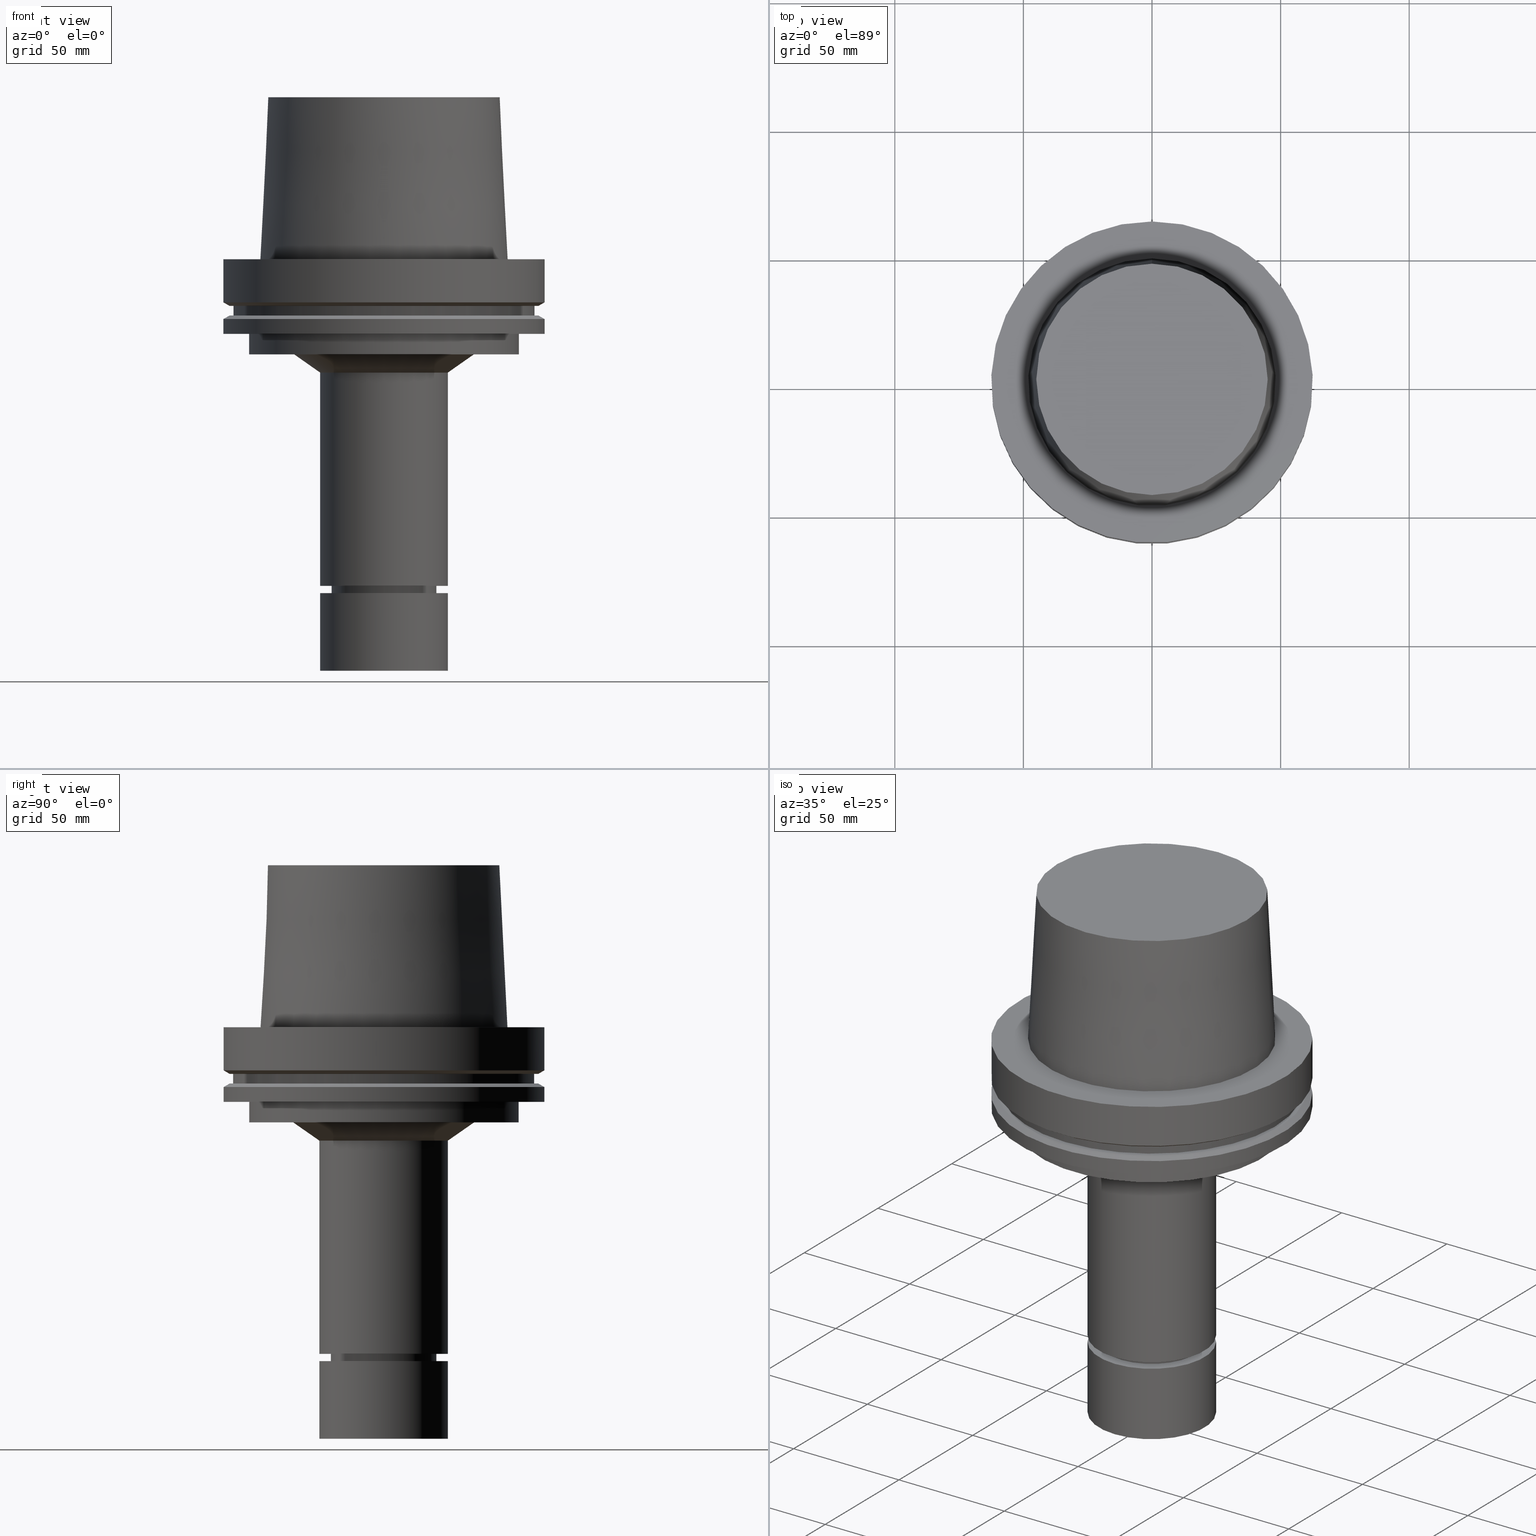
[diagram: canonical four-view strip — front | top / right | iso, engineering-drawing reading convention]
A machine part, canonical four-view strip (front | top / right | iso — engineering-drawing reading convention). The complete STEP part file that produces these views, byte-faithful:
ISO-10303-21;
HEADER;
FILE_DESCRIPTION((''),'1');
FILE_NAME('U:/Translate/02_3D_Field-HP\X2\FF71FF6FFF8CFF9F5916\X0\2013/02_Step_Field-HP\X2\FF71FF6FFF8CFF9F5916\X0\2013/HSK-A125-MEGAER32-160NL.stp','2016-06-22T04:50:22',(''),(''),'Spatial Interop R21 SP3','Kubotek KeyCreator 2011 V10.0.2 (22737)',' ');
FILE_SCHEMA(('automotive_design'));
ENDSEC;
DATA;
#1=MECHANICAL_DESIGN_GEOMETRIC_PRESENTATION_REPRESENTATION(' ',(#14,#15,#16,#17,#18,#19,#20,#21,#22,#23,#24,#25,#26,#27,#28,#29,#30,#31,#32,#33,#34,#35,#36,#37,#38,#39,#40,#41,#42,#43,#44,#45,#46,#47,#48,#49,#50,#51,#52,#53,#54,#55,#56,#57,#58,#59,#60,#61),#10);
#2=PRODUCT_DEFINITION_CONTEXT('',#62,'design');
#3=APPLICATION_PROTOCOL_DEFINITION('INTERNATIONAL STANDARD','automotive_design',1994,#62);
#4=PRODUCT_CATEGORY_RELATIONSHIP('NONE','NONE',#63,#64);
#5=SHAPE_DEFINITION_REPRESENTATION(#65,#66);
#6=PRODUCT_DEFINITION_CONTEXT('',#67,'design');
#7=APPLICATION_PROTOCOL_DEFINITION('INTERNATIONAL STANDARD','automotive_design',1994,#67);
#8=PRODUCT_CATEGORY_RELATIONSHIP('NONE','NONE',#68,#69);
#9=SHAPE_DEFINITION_REPRESENTATION(#70,#71);
#10= (GEOMETRIC_REPRESENTATION_CONTEXT(3)GLOBAL_UNCERTAINTY_ASSIGNED_CONTEXT((#74))GLOBAL_UNIT_ASSIGNED_CONTEXT((#76,#77,#78))REPRESENTATION_CONTEXT('NONE','WORKSPACE'));
#14=STYLED_ITEM('',(#80,#81),#82);
#15=STYLED_ITEM('',(#83,#84),#85);
#16=STYLED_ITEM('',(#86,#87),#88);
#17=STYLED_ITEM('',(#89),#90);
#18=STYLED_ITEM('',(#91),#92);
#19=STYLED_ITEM('',(#93,#94),#95);
#20=STYLED_ITEM('',(#96,#97),#98);
#21=STYLED_ITEM('',(#99,#100),#101);
#22=STYLED_ITEM('',(#102),#103);
#23=STYLED_ITEM('',(#104),#105);
#24=STYLED_ITEM('',(#106),#107);
#25=STYLED_ITEM('',(#108),#109);
#26=STYLED_ITEM('',(#110,#111),#112);
#27=STYLED_ITEM('',(#113),#114);
#28=STYLED_ITEM('',(#115),#116);
#29=STYLED_ITEM('',(#117,#118),#119);
#30=STYLED_ITEM('',(#120,#121),#122);
#31=STYLED_ITEM('',(#123),#124);
#32=STYLED_ITEM('',(#125,#126),#127);
#33=STYLED_ITEM('',(#128,#129),#130);
#34=STYLED_ITEM('',(#131,#132),#133);
#35=STYLED_ITEM('',(#134),#135);
#36=STYLED_ITEM('',(#136,#137),#138);
#37=STYLED_ITEM('',(#139,#140),#141);
#38=STYLED_ITEM('',(#142,#143),#144);
#39=STYLED_ITEM('',(#145),#146);
#40=STYLED_ITEM('',(#147),#148);
#41=STYLED_ITEM('',(#149),#150);
#42=STYLED_ITEM('',(#151,#152),#153);
#43=STYLED_ITEM('',(#154,#155),#156);
#44=STYLED_ITEM('',(#157,#158),#159);
#45=STYLED_ITEM('',(#160),#161);
#46=STYLED_ITEM('',(#162),#163);
#47=STYLED_ITEM('',(#164,#165),#166);
#48=STYLED_ITEM('',(#167),#168);
#49=STYLED_ITEM('',(#169),#170);
#50=STYLED_ITEM('',(#171,#172),#173);
#51=STYLED_ITEM('',(#174,#175),#176);
#52=STYLED_ITEM('',(#177,#178),#179);
#53=STYLED_ITEM('',(#180,#181),#182);
#54=STYLED_ITEM('',(#183,#184),#185);
#55=STYLED_ITEM('',(#186,#187),#188);
#56=STYLED_ITEM('',(#189),#190);
#57=STYLED_ITEM('',(#191),#192);
#58=STYLED_ITEM('',(#193,#194),#195);
#59=STYLED_ITEM('',(#196),#197);
#60=STYLED_ITEM('',(#198),#199);
#61=STYLED_ITEM('',(#200),#201);
#62=APPLICATION_CONTEXT(' ');
#63=PRODUCT_CATEGORY('part','NONE');
#64=PRODUCT_RELATED_PRODUCT_CATEGORY('detail',' ',(#202));
#65=PRODUCT_DEFINITION_SHAPE('NONE','NONE',#203);
#66=ADVANCED_BREP_SHAPE_REPRESENTATION('Unnamed[1]',(#119,#204),#10);
#67=APPLICATION_CONTEXT(' ');
#68=PRODUCT_CATEGORY('part','NONE');
#69=PRODUCT_RELATED_PRODUCT_CATEGORY('detail',' ',(#205));
#70=PRODUCT_DEFINITION_SHAPE('NONE','NONE',#206);
#71=ADVANCED_BREP_SHAPE_REPRESENTATION('Unnamed[1]',(#85,#207),#10);
#74=UNCERTAINTY_MEASURE_WITH_UNIT(LENGTH_MEASURE(1.0E-006),#76,'','');
#76= (CONVERSION_BASED_UNIT('MILLIMETRE',#210)LENGTH_UNIT()NAMED_UNIT(#213));
#77= (NAMED_UNIT(#215)PLANE_ANGLE_UNIT()SI_UNIT($,.RADIAN.));
#78= (NAMED_UNIT(#215)SOLID_ANGLE_UNIT()SI_UNIT($,.STERADIAN.));
#80=PRESENTATION_STYLE_ASSIGNMENT((#221));
#81=PRESENTATION_STYLE_ASSIGNMENT((#222));
#82=ADVANCED_FACE('Unnamed[1]',(#223),#224,.T.);
#83=PRESENTATION_STYLE_ASSIGNMENT((#225));
#84=PRESENTATION_STYLE_ASSIGNMENT((#226));
#85=MANIFOLD_SOLID_BREP('Unnamed[1]',#227);
#86=PRESENTATION_STYLE_ASSIGNMENT((#228));
#87=PRESENTATION_STYLE_ASSIGNMENT((#229));
#88=ADVANCED_FACE('Unnamed[1]',(#230,#231),#232,.T.);
#89=PRESENTATION_STYLE_ASSIGNMENT((#233));
#90=EDGE_CURVE('Unnamed[1]',#234,#234,#235,.T.);
#91=PRESENTATION_STYLE_ASSIGNMENT((#236));
#92=EDGE_CURVE('Unnamed[1]',#237,#237,#238,.T.);
#93=PRESENTATION_STYLE_ASSIGNMENT((#239));
#94=PRESENTATION_STYLE_ASSIGNMENT((#240));
#95=ADVANCED_FACE('Unnamed[1]',(#241,#242),#243,.T.);
#96=PRESENTATION_STYLE_ASSIGNMENT((#244));
#97=PRESENTATION_STYLE_ASSIGNMENT((#245));
#98=ADVANCED_FACE('Unnamed[1]',(#246,#247),#248,.T.);
#99=PRESENTATION_STYLE_ASSIGNMENT((#249));
#100=PRESENTATION_STYLE_ASSIGNMENT((#250));
#101=ADVANCED_FACE('Unnamed[1]',(#251,#252),#253,.T.);
#102=PRESENTATION_STYLE_ASSIGNMENT((#254));
#103=EDGE_CURVE('Unnamed[1]',#255,#255,#256,.T.);
#104=PRESENTATION_STYLE_ASSIGNMENT((#257));
#105=EDGE_CURVE('Unnamed[1]',#258,#258,#259,.T.);
#106=PRESENTATION_STYLE_ASSIGNMENT((#260));
#107=EDGE_CURVE('Unnamed[1]',#261,#261,#262,.T.);
#108=PRESENTATION_STYLE_ASSIGNMENT((#263));
#109=EDGE_CURVE('Unnamed[1]',#264,#264,#265,.T.);
#110=PRESENTATION_STYLE_ASSIGNMENT((#266));
#111=PRESENTATION_STYLE_ASSIGNMENT((#267));
#112=ADVANCED_FACE('Unnamed[1]',(#268,#269),#270,.T.);
#113=PRESENTATION_STYLE_ASSIGNMENT((#271));
#114=EDGE_CURVE('Unnamed[1]',#272,#272,#273,.T.);
#115=PRESENTATION_STYLE_ASSIGNMENT((#274));
#116=EDGE_CURVE('Unnamed[1]',#275,#275,#276,.T.);
#117=PRESENTATION_STYLE_ASSIGNMENT((#277));
#118=PRESENTATION_STYLE_ASSIGNMENT((#278));
#119=MANIFOLD_SOLID_BREP('Unnamed[1]',#279);
#120=PRESENTATION_STYLE_ASSIGNMENT((#280));
#121=PRESENTATION_STYLE_ASSIGNMENT((#281));
#122=ADVANCED_FACE('Unnamed[1]',(#282,#283),#284,.T.);
#123=PRESENTATION_STYLE_ASSIGNMENT((#285));
#124=EDGE_CURVE('Unnamed[1]',#286,#286,#287,.T.);
#125=PRESENTATION_STYLE_ASSIGNMENT((#288));
#126=PRESENTATION_STYLE_ASSIGNMENT((#289));
#127=ADVANCED_FACE('Unnamed[1]',(#290,#291),#292,.T.);
#128=PRESENTATION_STYLE_ASSIGNMENT((#293));
#129=PRESENTATION_STYLE_ASSIGNMENT((#294));
#130=ADVANCED_FACE('Unnamed[1]',(#295,#296),#297,.T.);
#131=PRESENTATION_STYLE_ASSIGNMENT((#298));
#132=PRESENTATION_STYLE_ASSIGNMENT((#299));
#133=ADVANCED_FACE('Unnamed[1]',(#300,#301),#302,.T.);
#134=PRESENTATION_STYLE_ASSIGNMENT((#303));
#135=EDGE_CURVE('Unnamed[1]',#304,#304,#305,.T.);
#136=PRESENTATION_STYLE_ASSIGNMENT((#306));
#137=PRESENTATION_STYLE_ASSIGNMENT((#307));
#138=ADVANCED_FACE('Unnamed[1]',(#308,#309),#310,.T.);
#139=PRESENTATION_STYLE_ASSIGNMENT((#311));
#140=PRESENTATION_STYLE_ASSIGNMENT((#312));
#141=ADVANCED_FACE('Unnamed[1]',(#313),#314,.T.);
#142=PRESENTATION_STYLE_ASSIGNMENT((#315));
#143=PRESENTATION_STYLE_ASSIGNMENT((#316));
#144=ADVANCED_FACE('Unnamed[1]',(#317),#318,.T.);
#145=PRESENTATION_STYLE_ASSIGNMENT((#319));
#146=EDGE_CURVE('Unnamed[1]',#320,#320,#321,.T.);
#147=PRESENTATION_STYLE_ASSIGNMENT((#322));
#148=EDGE_CURVE('Unnamed[1]',#323,#323,#324,.T.);
#149=PRESENTATION_STYLE_ASSIGNMENT((#325));
#150=EDGE_CURVE('Unnamed[1]',#326,#326,#327,.T.);
#151=PRESENTATION_STYLE_ASSIGNMENT((#328));
#152=PRESENTATION_STYLE_ASSIGNMENT((#329));
#153=ADVANCED_FACE('Unnamed[1]',(#330,#331),#332,.T.);
#154=PRESENTATION_STYLE_ASSIGNMENT((#333));
#155=PRESENTATION_STYLE_ASSIGNMENT((#334));
#156=ADVANCED_FACE('Unnamed[1]',(#335,#336),#337,.T.);
#157=PRESENTATION_STYLE_ASSIGNMENT((#338));
#158=PRESENTATION_STYLE_ASSIGNMENT((#339));
#159=ADVANCED_FACE('Unnamed[1]',(#340,#341),#342,.T.);
#160=PRESENTATION_STYLE_ASSIGNMENT((#343));
#161=EDGE_CURVE('Unnamed[1]',#344,#344,#345,.T.);
#162=PRESENTATION_STYLE_ASSIGNMENT((#346));
#163=EDGE_CURVE('Unnamed[1]',#347,#347,#348,.T.);
#164=PRESENTATION_STYLE_ASSIGNMENT((#349));
#165=PRESENTATION_STYLE_ASSIGNMENT((#350));
#166=ADVANCED_FACE('Unnamed[1]',(#351,#352),#353,.T.);
#167=PRESENTATION_STYLE_ASSIGNMENT((#354));
#168=EDGE_CURVE('Unnamed[1]',#355,#355,#356,.T.);
#169=PRESENTATION_STYLE_ASSIGNMENT((#357));
#170=EDGE_CURVE('Unnamed[1]',#358,#358,#359,.T.);
#171=PRESENTATION_STYLE_ASSIGNMENT((#360));
#172=PRESENTATION_STYLE_ASSIGNMENT((#361));
#173=ADVANCED_FACE('Unnamed[1]',(#362),#363,.T.);
#174=PRESENTATION_STYLE_ASSIGNMENT((#364));
#175=PRESENTATION_STYLE_ASSIGNMENT((#365));
#176=ADVANCED_FACE('Unnamed[1]',(#366,#367),#368,.T.);
#177=PRESENTATION_STYLE_ASSIGNMENT((#369));
#178=PRESENTATION_STYLE_ASSIGNMENT((#370));
#179=ADVANCED_FACE('Unnamed[1]',(#371,#372),#373,.T.);
#180=PRESENTATION_STYLE_ASSIGNMENT((#374));
#181=PRESENTATION_STYLE_ASSIGNMENT((#375));
#182=ADVANCED_FACE('Unnamed[1]',(#376,#377),#378,.T.);
#183=PRESENTATION_STYLE_ASSIGNMENT((#379));
#184=PRESENTATION_STYLE_ASSIGNMENT((#380));
#185=ADVANCED_FACE('Unnamed[1]',(#381,#382),#383,.T.);
#186=PRESENTATION_STYLE_ASSIGNMENT((#384));
#187=PRESENTATION_STYLE_ASSIGNMENT((#385));
#188=ADVANCED_FACE('Unnamed[1]',(#386,#387),#388,.T.);
#189=PRESENTATION_STYLE_ASSIGNMENT((#389));
#190=EDGE_CURVE('Unnamed[1]',#390,#390,#391,.T.);
#191=PRESENTATION_STYLE_ASSIGNMENT((#392));
#192=EDGE_CURVE('Unnamed[1]',#393,#393,#394,.T.);
#193=PRESENTATION_STYLE_ASSIGNMENT((#395));
#194=PRESENTATION_STYLE_ASSIGNMENT((#396));
#195=ADVANCED_FACE('Unnamed[1]',(#397,#398),#399,.T.);
#196=PRESENTATION_STYLE_ASSIGNMENT((#400));
#197=EDGE_CURVE('Unnamed[1]',#401,#401,#402,.T.);
#198=PRESENTATION_STYLE_ASSIGNMENT((#403));
#199=EDGE_CURVE('Unnamed[1]',#404,#404,#405,.T.);
#200=PRESENTATION_STYLE_ASSIGNMENT((#406));
#201=EDGE_CURVE('Unnamed[1]',#407,#407,#408,.T.);
#202=PRODUCT('Unnamed[1]','Unnamed[1]','PART-Unnamed[1]-DESC',(#409));
#203=PRODUCT_DEFINITION('NONE','NONE',#410,#2);
#204=AXIS2_PLACEMENT_3D('',#411,#412,#413);
#205=PRODUCT('Unnamed[1]','Unnamed[1]','PART-Unnamed[1]-DESC',(#414));
#206=PRODUCT_DEFINITION('NONE','NONE',#415,#6);
#207=AXIS2_PLACEMENT_3D('',#416,#417,#418);
#210=LENGTH_MEASURE_WITH_UNIT(LENGTH_MEASURE(1.0),#419);
#213=DIMENSIONAL_EXPONENTS(1.0,0.0,0.0,0.0,0.0,0.0,0.0);
#215=DIMENSIONAL_EXPONENTS(0.0,0.0,0.0,0.0,0.0,0.0,0.0);
#221=SURFACE_STYLE_USAGE(.BOTH.,#420);
#222=CURVE_STYLE('',#421,POSITIVE_LENGTH_MEASURE(1000.0),#422);
#223=FACE_OUTER_BOUND('',#423,.T.);
#224=PLANE('',#424);
#225=SURFACE_STYLE_USAGE(.BOTH.,#425);
#226=CURVE_STYLE('',#426,POSITIVE_LENGTH_MEASURE(1000.0),#427);
#227=CLOSED_SHELL('',(#82,#144,#185));
#228=SURFACE_STYLE_USAGE(.BOTH.,#428);
#229=CURVE_STYLE('',#429,POSITIVE_LENGTH_MEASURE(1000.0),#430);
#230=FACE_BOUND('',#431,.T.);
#231=FACE_BOUND('',#432,.T.);
#232=CONICAL_SURFACE('',#433,61.3112976320956,1.04719755119668);
#233=CURVE_STYLE('',#434,POSITIVE_LENGTH_MEASURE(1000.0),#435);
#234=VERTEX_POINT('',#436);
#235=CIRCLE('',#437,20.4999999999912);
#236=CURVE_STYLE('',#438,POSITIVE_LENGTH_MEASURE(1000.0),#439);
#237=VERTEX_POINT('',#440);
#238=CIRCLE('',#441,20.0000000000001);
#239=SURFACE_STYLE_USAGE(.BOTH.,#442);
#240=CURVE_STYLE('',#443,POSITIVE_LENGTH_MEASURE(1000.0),#444);
#241=FACE_BOUND('',#445,.T.);
#242=FACE_BOUND('',#446,.T.);
#243=CYLINDRICAL_SURFACE('',#447,20.4999999999962);
#244=SURFACE_STYLE_USAGE(.BOTH.,#448);
#245=CURVE_STYLE('',#449,POSITIVE_LENGTH_MEASURE(1000.0),#450);
#246=FACE_BOUND('',#451,.T.);
#247=FACE_BOUND('',#452,.T.);
#248=CYLINDRICAL_SURFACE('',#453,62.5);
#249=SURFACE_STYLE_USAGE(.BOTH.,#454);
#250=CURVE_STYLE('',#455,POSITIVE_LENGTH_MEASURE(1000.0),#456);
#251=FACE_BOUND('',#457,.T.);
#252=FACE_BOUND('',#458,.T.);
#253=CONICAL_SURFACE('',#459,61.311297632097,1.04719755119646);
#254=CURVE_STYLE('',#460,POSITIVE_LENGTH_MEASURE(1000.0),#461);
#255=VERTEX_POINT('',#462);
#256=CIRCLE('',#463,18.8999999999998);
#257=CURVE_STYLE('',#464,POSITIVE_LENGTH_MEASURE(1000.0),#465);
#258=VERTEX_POINT('',#466);
#259=CIRCLE('',#467,58.4999999999998);
#260=CURVE_STYLE('',#468,POSITIVE_LENGTH_MEASURE(1000.0),#469);
#261=VERTEX_POINT('',#470);
#262=CIRCLE('',#471,52.4999999999999);
#263=CURVE_STYLE('',#472,POSITIVE_LENGTH_MEASURE(1000.0),#473);
#264=VERTEX_POINT('',#474);
#265=CIRCLE('',#475,62.5);
#266=SURFACE_STYLE_USAGE(.BOTH.,#476);
#267=CURVE_STYLE('',#477,POSITIVE_LENGTH_MEASURE(1000.0),#478);
#268=FACE_BOUND('',#479,.T.);
#269=FACE_BOUND('',#480,.T.);
#270=CYLINDRICAL_SURFACE('',#481,24.9999999999999);
#271=CURVE_STYLE('',#482,POSITIVE_LENGTH_MEASURE(1000.0),#483);
#272=VERTEX_POINT('',#484);
#273=CIRCLE('',#485,58.5000000000001);
#274=CURVE_STYLE('',#486,POSITIVE_LENGTH_MEASURE(1000.0),#487);
#275=VERTEX_POINT('',#488);
#276=CIRCLE('',#489,60.122595264194);
#277=SURFACE_STYLE_USAGE(.BOTH.,#490);
#278=CURVE_STYLE('',#491,POSITIVE_LENGTH_MEASURE(1000.0),#492);
#279=CLOSED_SHELL('',(#173,#138,#159,#195,#88,#188,#153,#156,#101,#98,#176,#133,#166,#179,#112,#182,#95,#127,#122,#130,#141));
#280=SURFACE_STYLE_USAGE(.BOTH.,#493);
#281=CURVE_STYLE('',#494,POSITIVE_LENGTH_MEASURE(1000.0),#495);
#282=FACE_BOUND('',#496,.T.);
#283=FACE_BOUND('',#497,.T.);
#284=CYLINDRICAL_SURFACE('',#498,20.0000000000001);
#285=CURVE_STYLE('',#499,POSITIVE_LENGTH_MEASURE(1000.0),#500);
#286=VERTEX_POINT('',#501);
#287=CIRCLE('',#502,25.0000000000001);
#288=SURFACE_STYLE_USAGE(.BOTH.,#503);
#289=CURVE_STYLE('',#504,POSITIVE_LENGTH_MEASURE(1000.0),#505);
#290=FACE_BOUND('',#506,.T.);
#291=FACE_BOUND('',#507,.T.);
#292=CONICAL_SURFACE('',#508,20.2500000000007,0.766162649696661);
#293=SURFACE_STYLE_USAGE(.BOTH.,#509);
#294=CURVE_STYLE('',#510,POSITIVE_LENGTH_MEASURE(1000.0),#511);
#295=FACE_BOUND('',#512,.T.);
#296=FACE_BOUND('',#513,.T.);
#297=CONICAL_SURFACE('',#514,19.45,0.523598775598221);
#298=SURFACE_STYLE_USAGE(.BOTH.,#515);
#299=CURVE_STYLE('',#516,POSITIVE_LENGTH_MEASURE(1000.0),#517);
#300=FACE_BOUND('',#518,.T.);
#301=FACE_BOUND('',#519,.T.);
#302=CYLINDRICAL_SURFACE('',#520,52.5);
#303=CURVE_STYLE('',#521,POSITIVE_LENGTH_MEASURE(1000.0),#522);
#304=VERTEX_POINT('',#523);
#305=CIRCLE('',#524,62.5000000000002);
#306=SURFACE_STYLE_USAGE(.BOTH.,#525);
#307=CURVE_STYLE('',#526,POSITIVE_LENGTH_MEASURE(1000.0),#527);
#308=FACE_BOUND('',#528,.T.);
#309=FACE_BOUND('',#529,.T.);
#310=CONICAL_SURFACE('',#530,46.5560961923844,0.0500583457465964);
#311=SURFACE_STYLE_USAGE(.BOTH.,#531);
#312=CURVE_STYLE('',#532,POSITIVE_LENGTH_MEASURE(1000.0),#533);
#313=FACE_OUTER_BOUND('',#534,.T.);
#314=PLANE('',#535);
#315=SURFACE_STYLE_USAGE(.BOTH.,#536);
#316=CURVE_STYLE('',#537,POSITIVE_LENGTH_MEASURE(1000.0),#538);
#317=FACE_OUTER_BOUND('',#539,.T.);
#318=PLANE('',#540);
#319=CURVE_STYLE('',#541,POSITIVE_LENGTH_MEASURE(1000.0),#542);
#320=VERTEX_POINT('',#543);
#321=CIRCLE('',#544,62.5);
#322=CURVE_STYLE('',#545,POSITIVE_LENGTH_MEASURE(1000.0),#546);
#323=VERTEX_POINT('',#547);
#324=CIRCLE('',#548,20.5000000000013);
#325=CURVE_STYLE('',#549,POSITIVE_LENGTH_MEASURE(1000.0),#550);
#326=VERTEX_POINT('',#551);
#327=CIRCLE('',#552,25.0000000000001);
#328=SURFACE_STYLE_USAGE(.BOTH.,#553);
#329=CURVE_STYLE('',#554,POSITIVE_LENGTH_MEASURE(1000.0),#555);
#330=FACE_BOUND('',#556,.T.);
#331=FACE_BOUND('',#557,.T.);
#332=CYLINDRICAL_SURFACE('',#558,58.4999999999999);
#333=SURFACE_STYLE_USAGE(.BOTH.,#559);
#334=CURVE_STYLE('',#560,POSITIVE_LENGTH_MEASURE(1000.0),#561);
#335=FACE_OUTER_BOUND('',#562,.T.);
#336=FACE_BOUND('',#563,.T.);
#337=PLANE('',#564);
#338=SURFACE_STYLE_USAGE(.BOTH.,#565);
#339=CURVE_STYLE('',#566,POSITIVE_LENGTH_MEASURE(1000.0),#567);
#340=FACE_OUTER_BOUND('',#568,.T.);
#341=FACE_BOUND('',#569,.T.);
#342=PLANE('',#570);
#343=CURVE_STYLE('',#571,POSITIVE_LENGTH_MEASURE(1000.0),#572);
#344=VERTEX_POINT('',#573);
#345=CIRCLE('',#574,35.1435726714544);
#346=CURVE_STYLE('',#575,POSITIVE_LENGTH_MEASURE(1000.0),#576);
#347=VERTEX_POINT('',#577);
#348=CIRCLE('',#578,60.1225952641912);
#349=SURFACE_STYLE_USAGE(.BOTH.,#579);
#350=CURVE_STYLE('',#580,POSITIVE_LENGTH_MEASURE(1000.0),#581);
#351=FACE_BOUND('',#582,.T.);
#352=FACE_OUTER_BOUND('',#583,.T.);
#353=PLANE('',#584);
#354=CURVE_STYLE('',#585,POSITIVE_LENGTH_MEASURE(1000.0),#586);
#355=VERTEX_POINT('',#587);
#356=CIRCLE('',#588,25.0000000000002);
#357=CURVE_STYLE('',#589,POSITIVE_LENGTH_MEASURE(1000.0),#590);
#358=VERTEX_POINT('',#591);
#359=CIRCLE('',#592,24.9999999999996);
#360=SURFACE_STYLE_USAGE(.BOTH.,#593);
#361=CURVE_STYLE('',#594,POSITIVE_LENGTH_MEASURE(1000.0),#595);
#362=FACE_OUTER_BOUND('',#596,.T.);
#363=PLANE('',#597);
#364=SURFACE_STYLE_USAGE(.BOTH.,#598);
#365=CURVE_STYLE('',#599,POSITIVE_LENGTH_MEASURE(1000.0),#600);
#366=FACE_BOUND('',#601,.T.);
#367=FACE_OUTER_BOUND('',#602,.T.);
#368=PLANE('',#603);
#369=SURFACE_STYLE_USAGE(.BOTH.,#604);
#370=CURVE_STYLE('',#605,POSITIVE_LENGTH_MEASURE(1000.0),#606);
#371=FACE_BOUND('',#607,.T.);
#372=FACE_BOUND('',#608,.T.);
#373=CONICAL_SURFACE('',#609,30.071786335727,0.962446965226448);
#374=SURFACE_STYLE_USAGE(.BOTH.,#610);
#375=CURVE_STYLE('',#611,POSITIVE_LENGTH_MEASURE(1000.0),#612);
#376=FACE_BOUND('',#613,.T.);
#377=FACE_OUTER_BOUND('',#614,.T.);
#378=PLANE('',#615);
#379=SURFACE_STYLE_USAGE(.BOTH.,#616);
#380=CURVE_STYLE('',#617,POSITIVE_LENGTH_MEASURE(1000.0),#618);
#381=FACE_BOUND('',#619,.T.);
#382=FACE_BOUND('',#620,.T.);
#383=CYLINDRICAL_SURFACE('',#621,25.0000000000001);
#384=SURFACE_STYLE_USAGE(.BOTH.,#622);
#385=CURVE_STYLE('',#623,POSITIVE_LENGTH_MEASURE(1000.0),#624);
#386=FACE_BOUND('',#625,.T.);
#387=FACE_OUTER_BOUND('',#626,.T.);
#388=PLANE('',#627);
#389=CURVE_STYLE('',#628,POSITIVE_LENGTH_MEASURE(1000.0),#629);
#390=VERTEX_POINT('',#630);
#391=CIRCLE('',#631,62.5);
#392=CURVE_STYLE('',#632,POSITIVE_LENGTH_MEASURE(1000.0),#633);
#393=VERTEX_POINT('',#634);
#394=CIRCLE('',#635,20.0000000000002);
#395=SURFACE_STYLE_USAGE(.BOTH.,#636);
#396=CURVE_STYLE('',#637,POSITIVE_LENGTH_MEASURE(1000.0),#638);
#397=FACE_BOUND('',#639,.T.);
#398=FACE_BOUND('',#640,.T.);
#399=CYLINDRICAL_SURFACE('',#641,62.5000000000001);
#400=CURVE_STYLE('',#642,POSITIVE_LENGTH_MEASURE(1000.0),#643);
#401=VERTEX_POINT('',#644);
#402=CIRCLE('',#645,44.977939879759);
#403=CURVE_STYLE('',#646,POSITIVE_LENGTH_MEASURE(1000.0),#647);
#404=VERTEX_POINT('',#648);
#405=CIRCLE('',#649,52.5);
#406=CURVE_STYLE('',#650,POSITIVE_LENGTH_MEASURE(1000.0),#651);
#407=VERTEX_POINT('',#652);
#408=CIRCLE('',#653,48.1342525050097);
#409=PRODUCT_CONTEXT('',#62,'mechanical');
#410=PRODUCT_DEFINITION_FORMATION_WITH_SPECIFIED_SOURCE(' ','NONE',#202,.NOT_KNOWN.);
#411=CARTESIAN_POINT('',(0.0,0.0,0.0));
#412=DIRECTION('',(0.0,0.0,1.0));
#413=DIRECTION('',(1.0,0.0,0.0));
#414=PRODUCT_CONTEXT('',#67,'mechanical');
#415=PRODUCT_DEFINITION_FORMATION_WITH_SPECIFIED_SOURCE(' ','NONE',#205,.NOT_KNOWN.);
#416=CARTESIAN_POINT('',(0.0,0.0,0.0));
#417=DIRECTION('',(0.0,0.0,1.0));
#418=DIRECTION('',(1.0,0.0,0.0));
#419= (NAMED_UNIT(#213)LENGTH_UNIT()SI_UNIT(.MILLI.,.METRE.));
#420=SURFACE_SIDE_STYLE('',(#655));
#421=DRAUGHTING_PRE_DEFINED_CURVE_FONT('continuous');
#422=COLOUR_RGB('',0.0,1.0,0.0);
#423=EDGE_LOOP('',(#656));
#424=AXIS2_PLACEMENT_3D('',#657,#658,#659);
#425=SURFACE_SIDE_STYLE('',(#660));
#426=DRAUGHTING_PRE_DEFINED_CURVE_FONT('continuous');
#427=COLOUR_RGB('',0.0,1.0,0.0);
#428=SURFACE_SIDE_STYLE('',(#661));
#429=DRAUGHTING_PRE_DEFINED_CURVE_FONT('continuous');
#430=COLOUR_RGB('',0.0,1.0,0.0);
#431=EDGE_LOOP('',(#662));
#432=EDGE_LOOP('',(#663));
#433=AXIS2_PLACEMENT_3D('',#664,#665,#666);
#434=DRAUGHTING_PRE_DEFINED_CURVE_FONT('continuous');
#435=COLOUR_RGB('',0.0,1.0,0.0);
#436=CARTESIAN_POINT('',(7.77651682292902E-015,20.4999999999911,-127.000157569404));
#437=AXIS2_PLACEMENT_3D('',#667,#668,#669);
#438=DRAUGHTING_PRE_DEFINED_CURVE_FONT('continuous');
#439=COLOUR_RGB('',0.0,1.0,0.0);
#440=CARTESIAN_POINT('',(8.18866803583428E-015,20.0,-133.73109767707));
#441=AXIS2_PLACEMENT_3D('',#670,#671,#672);
#442=SURFACE_SIDE_STYLE('',(#673));
#443=DRAUGHTING_PRE_DEFINED_CURVE_FONT('continuous');
#444=COLOUR_RGB('',0.0,1.0,0.0);
#445=EDGE_LOOP('',(#674));
#446=EDGE_LOOP('',(#675));
#447=AXIS2_PLACEMENT_3D('',#676,#677,#678);
#448=SURFACE_SIDE_STYLE('',(#679));
#449=DRAUGHTING_PRE_DEFINED_CURVE_FONT('continuous');
#450=COLOUR_RGB('',0.0,1.0,0.0);
#451=EDGE_LOOP('',(#680));
#452=EDGE_LOOP('',(#681));
#453=AXIS2_PLACEMENT_3D('',#682,#683,#684);
#454=SURFACE_SIDE_STYLE('',(#685));
#455=DRAUGHTING_PRE_DEFINED_CURVE_FONT('continuous');
#456=COLOUR_RGB('',0.0,1.0,0.0);
#457=EDGE_LOOP('',(#686));
#458=EDGE_LOOP('',(#687));
#459=AXIS2_PLACEMENT_3D('',#688,#689,#690);
#460=DRAUGHTING_PRE_DEFINED_CURVE_FONT('continuous');
#461=COLOUR_RGB('',0.0,1.0,0.0);
#462=CARTESIAN_POINT('',(9.12361865364779E-015,18.8999999999997,-149.0));
#463=AXIS2_PLACEMENT_3D('',#691,#692,#693);
#464=DRAUGHTING_PRE_DEFINED_CURVE_FONT('continuous');
#465=COLOUR_RGB('',0.0,1.0,0.0);
#466=CARTESIAN_POINT('',(1.33945743656732E-015,58.4999999999998,-21.8749999999984));
#467=AXIS2_PLACEMENT_3D('',#694,#695,#696);
#468=DRAUGHTING_PRE_DEFINED_CURVE_FONT('continuous');
#469=COLOUR_RGB('',0.0,1.0,0.0);
#470=CARTESIAN_POINT('',(2.26559657842261E-015,52.4999999999999,-37.0000000000001));
#471=AXIS2_PLACEMENT_3D('',#697,#698,#699);
#472=DRAUGHTING_PRE_DEFINED_CURVE_FONT('continuous');
#473=COLOUR_RGB('',0.0,1.0,0.0);
#474=CARTESIAN_POINT('',(1.42350465640827E-015,62.5,-23.2475952641916));
#475=AXIS2_PLACEMENT_3D('',#700,#701,#702);
#476=SURFACE_SIDE_STYLE('',(#703));
#477=DRAUGHTING_PRE_DEFINED_CURVE_FONT('continuous');
#478=COLOUR_RGB('',0.0,1.0,0.0);
#479=EDGE_LOOP('',(#704));
#480=EDGE_LOOP('',(#705));
#481=AXIS2_PLACEMENT_3D('',#706,#707,#708);
#482=DRAUGHTING_PRE_DEFINED_CURVE_FONT('continuous');
#483=COLOUR_RGB('',0.0,1.0,0.0);
#484=CARTESIAN_POINT('',(1.10983616172739E-015,58.5,-18.1250000000017));
#485=AXIS2_PLACEMENT_3D('',#709,#710,#711);
#486=DRAUGHTING_PRE_DEFINED_CURVE_FONT('continuous');
#487=COLOUR_RGB('',0.0,1.0,0.0);
#488=CARTESIAN_POINT('',(1.33945743656747E-015,60.122595264194,-21.8750000000009));
#489=AXIS2_PLACEMENT_3D('',#712,#713,#714);
#490=SURFACE_SIDE_STYLE('',(#715));
#491=DRAUGHTING_PRE_DEFINED_CURVE_FONT('continuous');
#492=COLOUR_RGB('',0.0,1.0,0.0);
#493=SURFACE_SIDE_STYLE('',(#716));
#494=DRAUGHTING_PRE_DEFINED_CURVE_FONT('continuous');
#495=COLOUR_RGB('',0.0,1.0,0.0);
#496=EDGE_LOOP('',(#717));
#497=EDGE_LOOP('',(#718));
#498=AXIS2_PLACEMENT_3D('',#719,#720,#721);
#499=DRAUGHTING_PRE_DEFINED_CURVE_FONT('continuous');
#500=COLOUR_RGB('',0.0,1.0,0.0);
#501=CARTESIAN_POINT('',(9.79717439317883E-015,25.0,-160.0));
#502=AXIS2_PLACEMENT_3D('',#722,#723,#724);
#503=SURFACE_SIDE_STYLE('',(#725));
#504=DRAUGHTING_PRE_DEFINED_CURVE_FONT('continuous');
#505=COLOUR_RGB('',0.0,1.0,0.0);
#506=EDGE_LOOP('',(#726));
#507=EDGE_LOOP('',(#727));
#508=AXIS2_PLACEMENT_3D('',#728,#729,#730);
#509=SURFACE_SIDE_STYLE('',(#731));
#510=DRAUGHTING_PRE_DEFINED_CURVE_FONT('continuous');
#511=COLOUR_RGB('',0.0,1.0,0.0);
#512=EDGE_LOOP('',(#732));
#513=EDGE_LOOP('',(#733));
#514=AXIS2_PLACEMENT_3D('',#734,#735,#736);
#515=SURFACE_SIDE_STYLE('',(#737));
#516=DRAUGHTING_PRE_DEFINED_CURVE_FONT('continuous');
#517=COLOUR_RGB('',0.0,1.0,0.0);
#518=EDGE_LOOP('',(#738));
#519=EDGE_LOOP('',(#739));
#520=AXIS2_PLACEMENT_3D('',#740,#741,#742);
#521=DRAUGHTING_PRE_DEFINED_CURVE_FONT('continuous');
#522=COLOUR_RGB('',0.0,1.0,0.0);
#523=CARTESIAN_POINT('',(-5.58935713239973E-030,62.5000000000002,8.63540424946709E-014));
#524=AXIS2_PLACEMENT_3D('',#743,#744,#745);
#525=SURFACE_SIDE_STYLE('',(#746));
#526=DRAUGHTING_PRE_DEFINED_CURVE_FONT('continuous');
#527=COLOUR_RGB('',0.0,1.0,0.0);
#528=EDGE_LOOP('',(#747));
#529=EDGE_LOOP('',(#748));
#530=AXIS2_PLACEMENT_3D('',#749,#750,#751);
#531=SURFACE_SIDE_STYLE('',(#752));
#532=DRAUGHTING_PRE_DEFINED_CURVE_FONT('continuous');
#533=COLOUR_RGB('',0.0,1.0,0.0);
#534=EDGE_LOOP('',(#753));
#535=AXIS2_PLACEMENT_3D('',#754,#755,#756);
#536=SURFACE_SIDE_STYLE('',(#757));
#537=DRAUGHTING_PRE_DEFINED_CURVE_FONT('continuous');
#538=COLOUR_RGB('',0.0,1.0,0.0);
#539=EDGE_LOOP('',(#758));
#540=AXIS2_PLACEMENT_3D('',#759,#760,#761);
#541=DRAUGHTING_PRE_DEFINED_CURVE_FONT('continuous');
#542=COLOUR_RGB('',0.0,1.0,0.0);
#543=CARTESIAN_POINT('',(1.02578894188643E-015,62.5,-16.7524047358084));
#544=AXIS2_PLACEMENT_3D('',#762,#763,#764);
#545=DRAUGHTING_PRE_DEFINED_CURVE_FONT('continuous');
#546=COLOUR_RGB('',0.0,1.0,0.0);
#547=CARTESIAN_POINT('',(8.15685077867265E-015,20.5000000000012,-133.211482434801));
#548=AXIS2_PLACEMENT_3D('',#765,#766,#767);
#549=DRAUGHTING_PRE_DEFINED_CURVE_FONT('continuous');
#550=COLOUR_RGB('',0.0,1.0,0.0);
#551=CARTESIAN_POINT('',(7.94795772646632E-015,25.0,-129.8));
#552=AXIS2_PLACEMENT_3D('',#768,#769,#770);
#553=SURFACE_SIDE_STYLE('',(#771));
#554=DRAUGHTING_PRE_DEFINED_CURVE_FONT('continuous');
#555=COLOUR_RGB('',0.0,1.0,0.0);
#556=EDGE_LOOP('',(#772));
#557=EDGE_LOOP('',(#773));
#558=AXIS2_PLACEMENT_3D('',#774,#775,#776);
#559=SURFACE_SIDE_STYLE('',(#777));
#560=DRAUGHTING_PRE_DEFINED_CURVE_FONT('continuous');
#561=COLOUR_RGB('',0.0,1.0,0.0);
#562=EDGE_LOOP('',(#778));
#563=EDGE_LOOP('',(#779));
#564=AXIS2_PLACEMENT_3D('',#780,#781,#782);
#565=SURFACE_SIDE_STYLE('',(#783));
#566=DRAUGHTING_PRE_DEFINED_CURVE_FONT('continuous');
#567=COLOUR_RGB('',0.0,1.0,0.0);
#568=EDGE_LOOP('',(#784));
#569=EDGE_LOOP('',(#785));
#570=AXIS2_PLACEMENT_3D('',#786,#787,#788);
#571=DRAUGHTING_PRE_DEFINED_CURVE_FONT('continuous');
#572=COLOUR_RGB('',0.0,1.0,0.0);
#573=CARTESIAN_POINT('',(2.26559657842261E-015,35.1435726714544,-37.0000000000001));
#574=AXIS2_PLACEMENT_3D('',#789,#790,#791);
#575=DRAUGHTING_PRE_DEFINED_CURVE_FONT('continuous');
#576=COLOUR_RGB('',0.0,1.0,0.0);
#577=CARTESIAN_POINT('',(1.10983616172729E-015,60.1225952641912,-18.1250000000001));
#578=AXIS2_PLACEMENT_3D('',#792,#793,#794);
#579=SURFACE_SIDE_STYLE('',(#795));
#580=DRAUGHTING_PRE_DEFINED_CURVE_FONT('continuous');
#581=COLOUR_RGB('',0.0,1.0,0.0);
#582=EDGE_LOOP('',(#796));
#583=EDGE_LOOP('',(#797));
#584=AXIS2_PLACEMENT_3D('',#798,#799,#800);
#585=DRAUGHTING_PRE_DEFINED_CURVE_FONT('continuous');
#586=COLOUR_RGB('',0.0,1.0,0.0);
#587=CARTESIAN_POINT('',(7.77651682292899E-015,25.0000000000001,-127.000157569404));
#588=AXIS2_PLACEMENT_3D('',#801,#802,#803);
#589=DRAUGHTING_PRE_DEFINED_CURVE_FONT('continuous');
#590=COLOUR_RGB('',0.0,1.0,0.0);
#591=CARTESIAN_POINT('',(2.6981810574591E-015,24.9999999999995,-44.0646406676224));
#592=AXIS2_PLACEMENT_3D('',#804,#805,#806);
#593=SURFACE_SIDE_STYLE('',(#807));
#594=DRAUGHTING_PRE_DEFINED_CURVE_FONT('continuous');
#595=COLOUR_RGB('',0.0,1.0,0.0);
#596=EDGE_LOOP('',(#808));
#597=AXIS2_PLACEMENT_3D('',#809,#810,#811);
#598=SURFACE_SIDE_STYLE('',(#812));
#599=DRAUGHTING_PRE_DEFINED_CURVE_FONT('continuous');
#600=COLOUR_RGB('',0.0,1.0,0.0);
#601=EDGE_LOOP('',(#813));
#602=EDGE_LOOP('',(#814));
#603=AXIS2_PLACEMENT_3D('',#815,#816,#817);
#604=SURFACE_SIDE_STYLE('',(#818));
#605=DRAUGHTING_PRE_DEFINED_CURVE_FONT('continuous');
#606=COLOUR_RGB('',0.0,1.0,0.0);
#607=EDGE_LOOP('',(#819));
#608=EDGE_LOOP('',(#820));
#609=AXIS2_PLACEMENT_3D('',#821,#822,#823);
#610=SURFACE_SIDE_STYLE('',(#824));
#611=DRAUGHTING_PRE_DEFINED_CURVE_FONT('continuous');
#612=COLOUR_RGB('',0.0,1.0,0.0);
#613=EDGE_LOOP('',(#825));
#614=EDGE_LOOP('',(#826));
#615=AXIS2_PLACEMENT_3D('',#827,#828,#829);
#616=SURFACE_SIDE_STYLE('',(#830));
#617=DRAUGHTING_PRE_DEFINED_CURVE_FONT('continuous');
#618=COLOUR_RGB('',0.0,1.0,0.0);
#619=EDGE_LOOP('',(#831));
#620=EDGE_LOOP('',(#832));
#621=AXIS2_PLACEMENT_3D('',#833,#834,#835);
#622=SURFACE_SIDE_STYLE('',(#836));
#623=DRAUGHTING_PRE_DEFINED_CURVE_FONT('continuous');
#624=COLOUR_RGB('',0.0,1.0,0.0);
#625=EDGE_LOOP('',(#837));
#626=EDGE_LOOP('',(#838));
#627=AXIS2_PLACEMENT_3D('',#839,#840,#841);
#628=DRAUGHTING_PRE_DEFINED_CURVE_FONT('continuous');
#629=COLOUR_RGB('',0.0,1.0,0.0);
#630=CARTESIAN_POINT('',(1.77573785876366E-015,62.5,-29.0));
#631=AXIS2_PLACEMENT_3D('',#842,#843,#844);
#632=DRAUGHTING_PRE_DEFINED_CURVE_FONT('continuous');
#633=COLOUR_RGB('',0.0,1.0,0.0);
#634=CARTESIAN_POINT('',(9.00695537738799E-015,20.0000000000001,-147.094744111673));
#635=AXIS2_PLACEMENT_3D('',#845,#846,#847);
#636=SURFACE_SIDE_STYLE('',(#848));
#637=DRAUGHTING_PRE_DEFINED_CURVE_FONT('continuous');
#638=COLOUR_RGB('',0.0,1.0,0.0);
#639=EDGE_LOOP('',(#849));
#640=EDGE_LOOP('',(#850));
#641=AXIS2_PLACEMENT_3D('',#851,#852,#853);
#642=DRAUGHTING_PRE_DEFINED_CURVE_FONT('continuous');
#643=COLOUR_RGB('',0.0,1.0,0.0);
#644=CARTESIAN_POINT('',(-3.85763741731416E-015,44.9779398797591,62.9999999999999));
#645=AXIS2_PLACEMENT_3D('',#854,#855,#856);
#646=DRAUGHTING_PRE_DEFINED_CURVE_FONT('continuous');
#647=COLOUR_RGB('',0.0,1.0,0.0);
#648=CARTESIAN_POINT('',(1.77573785876367E-015,52.5,-29.0000000000001));
#649=AXIS2_PLACEMENT_3D('',#857,#858,#859);
#650=DRAUGHTING_PRE_DEFINED_CURVE_FONT('continuous');
#651=COLOUR_RGB('',0.0,1.0,0.0);
#652=CARTESIAN_POINT('',(3.88158335277612E-029,48.1342525050097,-6.37705254174039E-013));
#653=AXIS2_PLACEMENT_3D('',#860,#861,#862);
#655=SURFACE_STYLE_FILL_AREA(#863);
#656=ORIENTED_EDGE('',*,*,#124,.T.);
#657=CARTESIAN_POINT('',(9.79717439317883E-015,12.5,-160.0));
#658=DIRECTION('',(6.12323399573677E-017,-1.01440369730142E-015,-1.0));
#659=DIRECTION('',(5.72871593164022E-032,1.0,-1.01440369730142E-015));
#660=SURFACE_STYLE_FILL_AREA(#864);
#661=SURFACE_STYLE_FILL_AREA(#865);
#662=ORIENTED_EDGE('',*,*,#163,.F.);
#663=ORIENTED_EDGE('',*,*,#146,.T.);
#664=CARTESIAN_POINT('',(1.06781255180686E-015,-7.39039421492137E-015,-17.4387023679042));
#665=DIRECTION('',(-6.12323399573676E-017,7.02088891513837E-016,1.0));
#666=DIRECTION('',(3.81633929546977E-032,1.0,-7.02088891513837E-016));
#667=CARTESIAN_POINT('',(7.77651682292902E-015,-8.43122748499854E-014,-127.000157569404));
#668=DIRECTION('',(6.12323399573677E-017,-7.02088891513837E-016,-1.0));
#669=DIRECTION('',(3.81633929546977E-032,1.0,-7.02088891513837E-016));
#670=CARTESIAN_POINT('',(8.18866803583428E-015,-8.90379931290224E-014,-133.73109767707));
#671=DIRECTION('',(6.12323399573677E-017,-7.02088891513837E-016,-1.0));
#672=DIRECTION('',(3.81633929546977E-032,1.0,-7.02088891513837E-016));
#673=SURFACE_STYLE_FILL_AREA(#866);
#674=ORIENTED_EDGE('',*,*,#148,.F.);
#675=ORIENTED_EDGE('',*,*,#90,.T.);
#676=CARTESIAN_POINT('',(7.96668380080083E-015,-8.64927259447748E-014,-130.105820002103));
#677=DIRECTION('',(6.12323399573677E-017,-7.02088891513837E-016,-1.0));
#678=DIRECTION('',(3.81633929546977E-032,1.0,-7.02088891513837E-016));
#679=SURFACE_STYLE_FILL_AREA(#867);
#680=ORIENTED_EDGE('',*,*,#190,.F.);
#681=ORIENTED_EDGE('',*,*,#109,.T.);
#682=CARTESIAN_POINT('',(1.59962125758596E-015,-1.34881031216497E-014,-26.1237976320957));
#683=DIRECTION('',(6.12323399573677E-017,-7.02088891513837E-016,-1.0));
#684=DIRECTION('',(3.81633929546977E-032,1.0,-7.02088891513837E-016));
#685=SURFACE_STYLE_FILL_AREA(#868);
#686=ORIENTED_EDGE('',*,*,#109,.F.);
#687=ORIENTED_EDGE('',*,*,#116,.T.);
#688=CARTESIAN_POINT('',(1.38148104648787E-015,-1.0986911445632E-014,-22.5612976320962));
#689=DIRECTION('',(6.12323399573677E-017,-7.02088891513837E-016,-1.0));
#690=DIRECTION('',(3.81633929546977E-032,1.0,-7.02088891513837E-016));
#691=CARTESIAN_POINT('',(9.12361865364779E-015,-9.97581198355616E-014,-149.0));
#692=DIRECTION('',(6.12323399573677E-017,-7.02088891513837E-016,-1.0));
#693=DIRECTION('',(3.81633929546977E-032,1.0,-7.02088891513837E-016));
#694=CARTESIAN_POINT('',(1.33945743656732E-015,-1.05050695018638E-014,-21.8749999999983));
#695=DIRECTION('',(6.12323399573677E-017,-7.02088891513837E-016,-1.0));
#696=DIRECTION('',(3.81633929546977E-032,1.0,-7.02088891513837E-016));
#697=CARTESIAN_POINT('',(2.26559657842261E-015,-2.11241639860118E-014,-37.0000000000001));
#698=DIRECTION('',(6.12323399573677E-017,-7.02088891513837E-016,-1.0));
#699=DIRECTION('',(3.81633929546977E-032,1.0,-7.02088891513837E-016));
#700=CARTESIAN_POINT('',(1.42350465640827E-015,-1.14687533893984E-014,-23.2475952641915));
#701=DIRECTION('',(6.12323399573677E-017,-7.02088891513837E-016,-1.0));
#702=DIRECTION('',(3.81633929546977E-032,1.0,-7.02088891513837E-016));
#703=SURFACE_STYLE_FILL_AREA(#869);
#704=ORIENTED_EDGE('',*,*,#168,.F.);
#705=ORIENTED_EDGE('',*,*,#170,.T.);
#706=CARTESIAN_POINT('',(5.23734894019404E-015,-5.51982222856357E-014,-85.532399118513));
#707=DIRECTION('',(6.12323399573677E-017,-7.02088891513837E-016,-1.0));
#708=DIRECTION('',(3.81633929546977E-032,1.0,-7.02088891513837E-016));
#709=CARTESIAN_POINT('',(1.10983616172739E-015,-7.87223615868924E-015,-18.1250000000016));
#710=DIRECTION('',(6.12323399573676E-017,-7.02088891513837E-016,-1.0));
#711=DIRECTION('',(3.81633929546977E-032,1.0,-7.02088891513837E-016));
#712=CARTESIAN_POINT('',(1.33945743656747E-015,-1.05050695018656E-014,-21.8750000000008));
#713=DIRECTION('',(6.12323399573677E-017,-7.02088891513837E-016,-1.0));
#714=DIRECTION('',(3.81633929546977E-032,1.0,-7.02088891513837E-016));
#715=SURFACE_STYLE_FILL_AREA(#870);
#716=SURFACE_STYLE_FILL_AREA(#871);
#717=ORIENTED_EDGE('',*,*,#192,.F.);
#718=ORIENTED_EDGE('',*,*,#92,.T.);
#719=CARTESIAN_POINT('',(8.59781170661113E-015,-9.37292269849493E-014,-140.412920894372));
#720=DIRECTION('',(6.12323399573677E-017,-7.02088891513837E-016,-1.0));
#721=DIRECTION('',(3.81633929546977E-032,1.0,-7.02088891513837E-016));
#722=CARTESIAN_POINT('',(9.79717439317882E-015,-1.07481097642214E-013,-160.0));
#723=DIRECTION('',(6.12323399573677E-017,-7.02088891513837E-016,-1.0));
#724=DIRECTION('',(3.81633929546977E-032,1.0,-7.02088891513837E-016));
#725=SURFACE_STYLE_FILL_AREA(#872);
#726=ORIENTED_EDGE('',*,*,#92,.F.);
#727=ORIENTED_EDGE('',*,*,#148,.T.);
#728=CARTESIAN_POINT('',(8.17275940725346E-015,-8.88555850842933E-014,-133.471290055935));
#729=DIRECTION('',(-6.12323399573677E-017,7.02088891513837E-016,1.0));
#730=DIRECTION('',(3.81633929546977E-032,1.0,-7.02088891513837E-016));
#731=SURFACE_STYLE_FILL_AREA(#873);
#732=ORIENTED_EDGE('',*,*,#103,.F.);
#733=ORIENTED_EDGE('',*,*,#192,.T.);
#734=CARTESIAN_POINT('',(9.06528701551789E-015,-9.90892903382188E-014,-148.047372055837));
#735=DIRECTION('',(-6.12323399573677E-017,7.02088891513837E-016,1.0));
#736=DIRECTION('',(3.81633929546977E-032,1.0,-7.02088891513837E-016));
#737=SURFACE_STYLE_FILL_AREA(#874);
#738=ORIENTED_EDGE('',*,*,#107,.F.);
#739=ORIENTED_EDGE('',*,*,#199,.T.);
#740=CARTESIAN_POINT('',(2.02066721859314E-015,-1.83158084199565E-014,-33.0000000000001));
#741=DIRECTION('',(6.12323399573677E-017,-7.02088891513837E-016,-1.0));
#742=DIRECTION('',(3.81633929546977E-032,1.0,-7.02088891513837E-016));
#743=CARTESIAN_POINT('',(-8.7016388700601E-030,4.8531250000003E-015,1.4210854715202E-013));
#744=DIRECTION('',(6.12323399573677E-017,-7.02088891513837E-016,-1.0));
#745=DIRECTION('',(3.81633929546977E-032,1.0,-7.02088891513837E-016));
#746=SURFACE_STYLE_FILL_AREA(#875);
#747=ORIENTED_EDGE('',*,*,#201,.F.);
#748=ORIENTED_EDGE('',*,*,#197,.T.);
#749=CARTESIAN_POINT('',(-1.92881870865706E-015,2.69689250826858E-014,31.4999999999997));
#750=DIRECTION('',(6.12323399573677E-017,-7.02088891513837E-016,-1.0));
#751=DIRECTION('',(3.81633929546977E-032,1.0,-7.02088891513837E-016));
#752=SURFACE_STYLE_FILL_AREA(#876);
#753=ORIENTED_EDGE('',*,*,#103,.T.);
#754=CARTESIAN_POINT('',(9.12361865364778E-015,9.44999999999981,-149.0));
#755=DIRECTION('',(6.12323399573677E-017,-1.64192709674105E-014,-1.0));
#756=DIRECTION('',(1.00056322899785E-030,1.0,-1.64192709674105E-014));
#757=SURFACE_STYLE_FILL_AREA(#877);
#758=ORIENTED_EDGE('',*,*,#150,.F.);
#759=CARTESIAN_POINT('',(7.94795772646632E-015,12.5,-129.8));
#760=DIRECTION('',(-6.12323399573677E-017,1.01440369730142E-015,1.0));
#761=DIRECTION('',(-5.72871593164022E-032,-1.0,1.01440369730142E-015));
#762=CARTESIAN_POINT('',(1.02578894188643E-015,-6.90855227115464E-015,-16.7524047358083));
#763=DIRECTION('',(6.12323399573677E-017,-7.02088891513837E-016,-1.0));
#764=DIRECTION('',(3.81633929546977E-032,1.0,-7.02088891513837E-016));
#765=CARTESIAN_POINT('',(8.15685077867264E-015,-8.86731770395642E-014,-133.211482434801));
#766=DIRECTION('',(6.12323399573677E-017,-7.02088891513837E-016,-1.0));
#767=DIRECTION('',(3.81633929546977E-032,1.0,-7.02088891513837E-016));
#768=CARTESIAN_POINT('',(7.94795772646632E-015,-8.62780131184959E-014,-129.8));
#769=DIRECTION('',(6.12323399573677E-017,-7.02088891513837E-016,-1.0));
#770=DIRECTION('',(3.81633929546977E-032,1.0,-7.02088891513837E-016));
#771=SURFACE_STYLE_FILL_AREA(#878);
#772=ORIENTED_EDGE('',*,*,#105,.F.);
#773=ORIENTED_EDGE('',*,*,#114,.T.);
#774=CARTESIAN_POINT('',(1.22464679914735E-015,-9.18865283027653E-015,-20.0));
#775=DIRECTION('',(6.12323399573676E-017,-7.02088891513837E-016,-1.0));
#776=DIRECTION('',(3.81633929546977E-032,1.0,-7.02088891513837E-016));
#777=SURFACE_STYLE_FILL_AREA(#879);
#778=ORIENTED_EDGE('',*,*,#116,.F.);
#779=ORIENTED_EDGE('',*,*,#105,.T.);
#780=CARTESIAN_POINT('',(1.33945743656739E-015,59.3112976320969,-21.8749999999996));
#781=DIRECTION('',(-6.12323399573677E-017,1.54130347502767E-012,1.0));
#782=DIRECTION('',(-9.43727912076354E-029,-1.0,1.54130347502767E-012));
#783=SURFACE_STYLE_FILL_AREA(#880);
#784=ORIENTED_EDGE('',*,*,#135,.F.);
#785=ORIENTED_EDGE('',*,*,#201,.T.);
#786=CARTESIAN_POINT('',(1.66132381976807E-029,55.317126252505,-2.75675605839684E-013));
#787=DIRECTION('',(-6.12323399573677E-017,-5.04017836121091E-014,1.0));
#788=DIRECTION('',(3.09104630132512E-030,-1.0,-5.04017836121091E-014));
#789=CARTESIAN_POINT('',(2.26559657842261E-015,-2.11241639860118E-014,-37.0000000000001));
#790=DIRECTION('',(6.12323399573677E-017,-7.02088891513837E-016,-1.0));
#791=DIRECTION('',(3.81633929546977E-032,1.0,-7.02088891513837E-016));
#792=CARTESIAN_POINT('',(1.10983616172729E-015,-7.87223615868812E-015,-18.125));
#793=DIRECTION('',(6.12323399573677E-017,-7.02088891513837E-016,-1.0));
#794=DIRECTION('',(3.81633929546977E-032,1.0,-7.02088891513837E-016));
#795=SURFACE_STYLE_FILL_AREA(#881);
#796=ORIENTED_EDGE('',*,*,#161,.F.);
#797=ORIENTED_EDGE('',*,*,#107,.T.);
#798=CARTESIAN_POINT('',(2.26559657842261E-015,43.8217863357271,-37.0000000000001));
#799=DIRECTION('',(6.12323399573677E-017,1.22464679914735E-016,-1.0));
#800=DIRECTION('',(-1.23259516440783E-032,1.0,1.22464679914735E-016));
#801=CARTESIAN_POINT('',(7.77651682292899E-015,-8.43122748499851E-014,-127.000157569404));
#802=DIRECTION('',(6.12323399573677E-017,-7.02088891513837E-016,-1.0));
#803=DIRECTION('',(3.81633929546977E-032,1.0,-7.02088891513837E-016));
#804=CARTESIAN_POINT('',(2.6981810574591E-015,-2.60841697212864E-014,-44.0646406676224));
#805=DIRECTION('',(6.12323399573677E-017,-7.02088891513837E-016,-1.0));
#806=DIRECTION('',(3.81633929546977E-032,1.0,-7.02088891513837E-016));
#807=SURFACE_STYLE_FILL_AREA(#882);
#808=ORIENTED_EDGE('',*,*,#197,.F.);
#809=CARTESIAN_POINT('',(-3.85763741731416E-015,22.4889699398796,62.9999999999999));
#810=DIRECTION('',(-6.12323399573677E-017,-1.22464679914735E-016,1.0));
#811=DIRECTION('',(1.23259516440783E-032,-1.0,-1.22464679914735E-016));
#812=SURFACE_STYLE_FILL_AREA(#883);
#813=ORIENTED_EDGE('',*,*,#199,.F.);
#814=ORIENTED_EDGE('',*,*,#190,.T.);
#815=CARTESIAN_POINT('',(1.77573785876367E-015,57.5,-29.0000000000001));
#816=DIRECTION('',(6.12323399573677E-017,9.00424887691601E-015,-1.0));
#817=DIRECTION('',(-5.56178381022836E-031,1.0,9.00424887691601E-015));
#818=SURFACE_STYLE_FILL_AREA(#884);
#819=ORIENTED_EDGE('',*,*,#170,.F.);
#820=ORIENTED_EDGE('',*,*,#161,.T.);
#821=CARTESIAN_POINT('',(2.48188881794086E-015,-2.36041668536491E-014,-40.5323203338112));
#822=DIRECTION('',(-6.12323399573677E-017,7.02088891513837E-016,1.0));
#823=DIRECTION('',(3.81633929546977E-032,1.0,-7.02088891513837E-016));
#824=SURFACE_STYLE_FILL_AREA(#885);
#825=ORIENTED_EDGE('',*,*,#90,.F.);
#826=ORIENTED_EDGE('',*,*,#168,.T.);
#827=CARTESIAN_POINT('',(7.776516822929E-015,22.7499999999956,-127.000157569404));
#828=DIRECTION('',(6.12323399573677E-017,1.10651334686819E-013,-1.0));
#829=DIRECTION('',(-6.78026729501056E-030,1.0,1.10651334686819E-013));
#830=SURFACE_STYLE_FILL_AREA(#886);
#831=ORIENTED_EDGE('',*,*,#124,.F.);
#832=ORIENTED_EDGE('',*,*,#150,.T.);
#833=CARTESIAN_POINT('',(8.87256605982257E-015,-9.68795553803548E-014,-144.9));
#834=DIRECTION('',(6.12323399573677E-017,-7.02088891513837E-016,-1.0));
#835=DIRECTION('',(3.81633929546977E-032,1.0,-7.02088891513837E-016));
#836=SURFACE_STYLE_FILL_AREA(#887);
#837=ORIENTED_EDGE('',*,*,#114,.F.);
#838=ORIENTED_EDGE('',*,*,#163,.T.);
#839=CARTESIAN_POINT('',(1.10983616172734E-015,59.3112976320956,-18.1250000000009));
#840=DIRECTION('',(6.12323399573677E-017,9.85408931824386E-013,-1.0));
#841=DIRECTION('',(-6.03437218632281E-029,1.0,9.85408931824386E-013));
#842=CARTESIAN_POINT('',(1.77573785876366E-015,-1.55074528539011E-014,-29.0));
#843=DIRECTION('',(6.12323399573676E-017,-7.02088891513837E-016,-1.0));
#844=DIRECTION('',(3.81633929546977E-032,1.0,-7.02088891513837E-016));
#845=CARTESIAN_POINT('',(9.00695537738799E-015,-9.84204608408761E-014,-147.094744111673));
#846=DIRECTION('',(6.12323399573677E-017,-7.02088891513837E-016,-1.0));
#847=DIRECTION('',(3.81633929546977E-032,1.0,-7.02088891513837E-016));
#848=SURFACE_STYLE_FILL_AREA(#888);
#849=ORIENTED_EDGE('',*,*,#146,.F.);
#850=ORIENTED_EDGE('',*,*,#135,.T.);
#851=CARTESIAN_POINT('',(5.12894470943213E-016,-1.02771363557719E-015,-8.37620236790411));
#852=DIRECTION('',(6.12323399573677E-017,-7.02088891513837E-016,-1.0));
#853=DIRECTION('',(3.81633929546977E-032,1.0,-7.02088891513837E-016));
#854=CARTESIAN_POINT('',(-3.85763741731416E-015,4.90847251653719E-014,62.9999999999999));
#855=DIRECTION('',(6.12323399573677E-017,-7.02088891513837E-016,-1.0));
#856=DIRECTION('',(3.81633929546977E-032,1.0,-7.02088891513837E-016));
#857=CARTESIAN_POINT('',(1.77573785876367E-015,-1.55074528539011E-014,-29.0000000000001));
#858=DIRECTION('',(6.12323399573677E-017,-7.02088891513837E-016,-1.0));
#859=DIRECTION('',(3.81633929546977E-032,1.0,-7.02088891513837E-016));
#860=CARTESIAN_POINT('',(3.82872110282645E-029,4.85312499999976E-015,-6.25277607468888E-013));
#861=DIRECTION('',(6.12323399573677E-017,-7.02088891513837E-016,-1.0));
#862=DIRECTION('',(3.81633929546977E-032,1.0,-7.02088891513837E-016));
#863=FILL_AREA_STYLE('',(#889));
#864=FILL_AREA_STYLE('',(#890));
#865=FILL_AREA_STYLE('',(#891));
#866=FILL_AREA_STYLE('',(#892));
#867=FILL_AREA_STYLE('',(#893));
#868=FILL_AREA_STYLE('',(#894));
#869=FILL_AREA_STYLE('',(#895));
#870=FILL_AREA_STYLE('',(#896));
#871=FILL_AREA_STYLE('',(#897));
#872=FILL_AREA_STYLE('',(#898));
#873=FILL_AREA_STYLE('',(#899));
#874=FILL_AREA_STYLE('',(#900));
#875=FILL_AREA_STYLE('',(#901));
#876=FILL_AREA_STYLE('',(#902));
#877=FILL_AREA_STYLE('',(#903));
#878=FILL_AREA_STYLE('',(#904));
#879=FILL_AREA_STYLE('',(#905));
#880=FILL_AREA_STYLE('',(#906));
#881=FILL_AREA_STYLE('',(#907));
#882=FILL_AREA_STYLE('',(#908));
#883=FILL_AREA_STYLE('',(#909));
#884=FILL_AREA_STYLE('',(#910));
#885=FILL_AREA_STYLE('',(#911));
#886=FILL_AREA_STYLE('',(#912));
#887=FILL_AREA_STYLE('',(#913));
#888=FILL_AREA_STYLE('',(#914));
#889=FILL_AREA_STYLE_COLOUR('',#915);
#890=FILL_AREA_STYLE_COLOUR('',#916);
#891=FILL_AREA_STYLE_COLOUR('',#917);
#892=FILL_AREA_STYLE_COLOUR('',#918);
#893=FILL_AREA_STYLE_COLOUR('',#919);
#894=FILL_AREA_STYLE_COLOUR('',#920);
#895=FILL_AREA_STYLE_COLOUR('',#921);
#896=FILL_AREA_STYLE_COLOUR('',#922);
#897=FILL_AREA_STYLE_COLOUR('',#923);
#898=FILL_AREA_STYLE_COLOUR('',#924);
#899=FILL_AREA_STYLE_COLOUR('',#925);
#900=FILL_AREA_STYLE_COLOUR('',#926);
#901=FILL_AREA_STYLE_COLOUR('',#927);
#902=FILL_AREA_STYLE_COLOUR('',#928);
#903=FILL_AREA_STYLE_COLOUR('',#929);
#904=FILL_AREA_STYLE_COLOUR('',#930);
#905=FILL_AREA_STYLE_COLOUR('',#931);
#906=FILL_AREA_STYLE_COLOUR('',#932);
#907=FILL_AREA_STYLE_COLOUR('',#933);
#908=FILL_AREA_STYLE_COLOUR('',#934);
#909=FILL_AREA_STYLE_COLOUR('',#935);
#910=FILL_AREA_STYLE_COLOUR('',#936);
#911=FILL_AREA_STYLE_COLOUR('',#937);
#912=FILL_AREA_STYLE_COLOUR('',#938);
#913=FILL_AREA_STYLE_COLOUR('',#939);
#914=FILL_AREA_STYLE_COLOUR('',#940);
#915=COLOUR_RGB('',0.0,1.0,0.0);
#916=COLOUR_RGB('',0.0,1.0,0.0);
#917=COLOUR_RGB('',0.0,1.0,0.0);
#918=COLOUR_RGB('',0.0,1.0,0.0);
#919=COLOUR_RGB('',0.0,1.0,0.0);
#920=COLOUR_RGB('',0.0,1.0,0.0);
#921=COLOUR_RGB('',0.0,1.0,0.0);
#922=COLOUR_RGB('',0.0,1.0,0.0);
#923=COLOUR_RGB('',0.0,1.0,0.0);
#924=COLOUR_RGB('',0.0,1.0,0.0);
#925=COLOUR_RGB('',0.0,1.0,0.0);
#926=COLOUR_RGB('',0.0,1.0,0.0);
#927=COLOUR_RGB('',0.0,1.0,0.0);
#928=COLOUR_RGB('',0.0,1.0,0.0);
#929=COLOUR_RGB('',0.0,1.0,0.0);
#930=COLOUR_RGB('',0.0,1.0,0.0);
#931=COLOUR_RGB('',0.0,1.0,0.0);
#932=COLOUR_RGB('',0.0,1.0,0.0);
#933=COLOUR_RGB('',0.0,1.0,0.0);
#934=COLOUR_RGB('',0.0,1.0,0.0);
#935=COLOUR_RGB('',0.0,1.0,0.0);
#936=COLOUR_RGB('',0.0,1.0,0.0);
#937=COLOUR_RGB('',0.0,1.0,0.0);
#938=COLOUR_RGB('',0.0,1.0,0.0);
#939=COLOUR_RGB('',0.0,1.0,0.0);
#940=COLOUR_RGB('',0.0,1.0,0.0);
ENDSEC;
END-ISO-10303-21;
